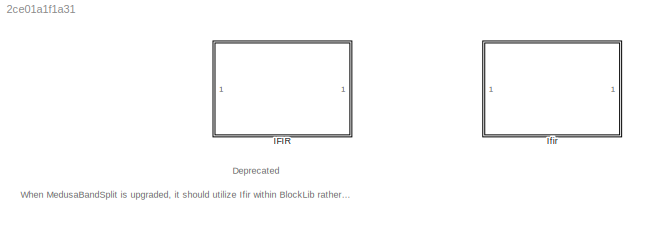
MODEL slx_2ce01a1f1a31
KIND library
CONFIG AbsTol = auto
CONFIG EnableMultiTasking = off
CONFIG FixedStep = auto
CONFIG MaxStep = auto
CONFIG MinStep = auto
CONFIG RelTol = 1e-3
CONFIG SampleTimeConstraint = Unconstrained
CONFIG SolverName = VariableStepAuto
CONFIG StartTime = 0.0
CONFIG StopTime = 10.0
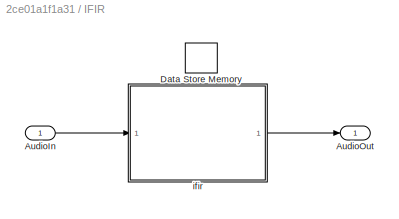
BLOCK [SubSystem] IFIR
BLOCK [Inport] IFIR/AudioIn
BLOCK [Outport] IFIR/AudioOut
  VectorParamsAs1DForOutWhenUnconnected = off
BLOCK [DataStoreMemory] IFIR/Data Store Memory
  DataStoreName = states
  InitialValue = zeros(size(coeffsFlip,1)*I,numChannels)
  OutDataTypeStr = single
  ReadBeforeWriteMsg = warning
  ShowAdditionalParam = off
  SignalType = real
  WriteAfterReadMsg = warning
  WriteAfterWriteMsg = warning
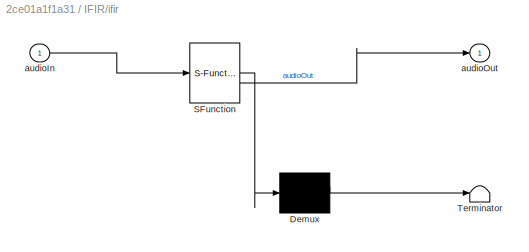
BLOCK [SubSystem] IFIR/ifir
  ErrorFcn = Stateflow.Translate.translate
  PermitHierarchicalResolution = ExplicitOnly
  SFBlockType = MATLAB Function
  TreatAsAtomicUnit = on
BLOCK [Demux] IFIR/ifir/ Demux 
  Outputs = 1
BLOCK [S-Function] IFIR/ifir/ SFunction 
  EnableBusSupport = off
  FunctionName = sf_sfun
  Parameters = I,coeffsFlip
  PortCounts = [1 2]
  SFcnIsStateOwnerBlock = off
  SFunctionDeploymentMode = off
  Tag = Stateflow S-Function 2
BLOCK [Terminator] IFIR/ifir/ Terminator 
BLOCK [Inport] IFIR/ifir/audioIn
BLOCK [Outport] IFIR/ifir/audioOut
  VectorParamsAs1DForOutWhenUnconnected = off
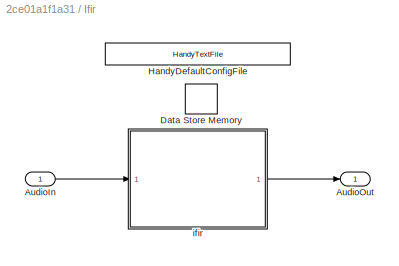
BLOCK [SubSystem] Ifir
BLOCK [Inport] Ifir/AudioIn
BLOCK [Outport] Ifir/AudioOut
  VectorParamsAs1DForOutWhenUnconnected = off
BLOCK [DataStoreMemory] Ifir/Data Store Memory
  DataStoreName = states
  InitialValue = Config.InitialStates
  OutDataTypeStr = single
  ReadBeforeWriteMsg = warning
  ShowAdditionalParam = off
  SignalType = real
  WriteAfterReadMsg = warning
  WriteAfterWriteMsg = warning
BLOCK [Reference] Ifir/HandyDefaultConfigFile  REF=HandyTextFile/HandyTextFile
  SourceBlock = HandyTextFile/HandyTextFile
  SourceProductName = Bose Talaria
  SourceType = Talaria Handy Text File
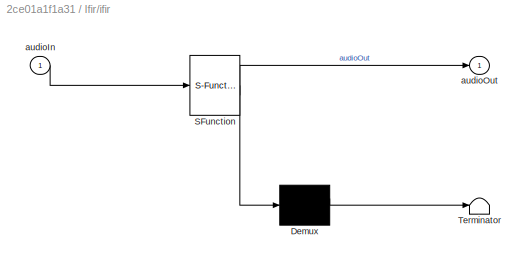
BLOCK [SubSystem] Ifir/ifir
  ErrorFcn = Stateflow.Translate.translate
  PermitHierarchicalResolution = ExplicitOnly
  SFBlockType = MATLAB Function
  TreatAsAtomicUnit = on
BLOCK [Demux] Ifir/ifir/ Demux 
  Outputs = 1
BLOCK [S-Function] Ifir/ifir/ SFunction 
  EnableBusSupport = off
  FunctionName = sf_sfun
  Parameters = FlippedCoefficients,InterpolationFactor
  PortCounts = [1 2]
  SFcnIsStateOwnerBlock = off
  SFunctionDeploymentMode = off
  Tag = Stateflow S-Function 1
BLOCK [Terminator] Ifir/ifir/ Terminator 
BLOCK [Inport] Ifir/ifir/audioIn
BLOCK [Outport] Ifir/ifir/audioOut
  VectorParamsAs1DForOutWhenUnconnected = off
ANNOTATION (root): When MedusaBandSplit is upgraded, it should utilize Ifir within BlockLib rather than IFIR, at which point IFIR.slx and corresponding config file should be deleted.
ANNOTATION (root): Deprecated
CHART Ifir/ifir states=1 transitions=1
  STATE_LABEL 'eML_blk_kernel()'
  STATE_LABEL 'SCRIPT:\nfunction audioOut = ifir(audioIn, InterpolationFactor, FlippedCoefficients)\n\n% An interpolated FIR filter is an FIR filter with a sparse set of\n% coefficients.  That is, the coefficients contain I-1 zeros between\n% each point, so the effective length of  filter is len(input_coeffs) * I  \n% The function support multiple channels, with each\n% channel sharing the same set of filter coefficien...<+3301ch>'
CHART IFIR/ifir states=1 transitions=1
  STATE_LABEL 'eML_blk_kernel()'
  STATE_LABEL 'SCRIPT:\nfunction audioOut = ifir(audioIn, coeffsFlip, I)\n\n% An interpolated FIR filter is an FIR filter with a sparse set of\n% coefficients.  That is, the coefficients contain I-1 zeros between\n% each point, so the effective length of  filter is len(input_coeffs) * I  \n% The function support multiple channels, with each\n% channel sharing the same set of filter coefficients.\n% \n% p : coefficient se...<+3130ch>'
CHART  states=0 transitions=0
CHART  states=0 transitions=0
